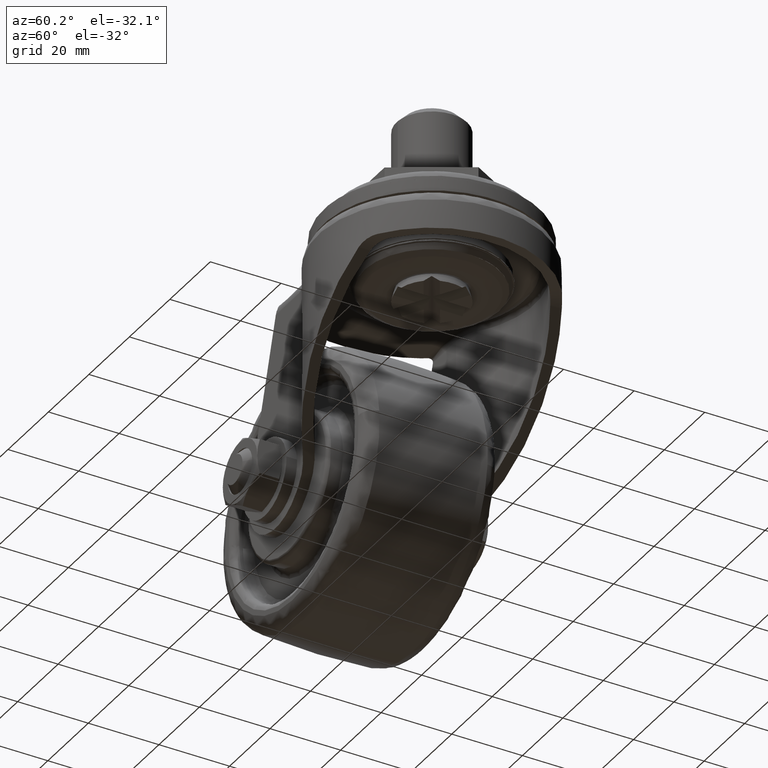
[diagram: clean part render]
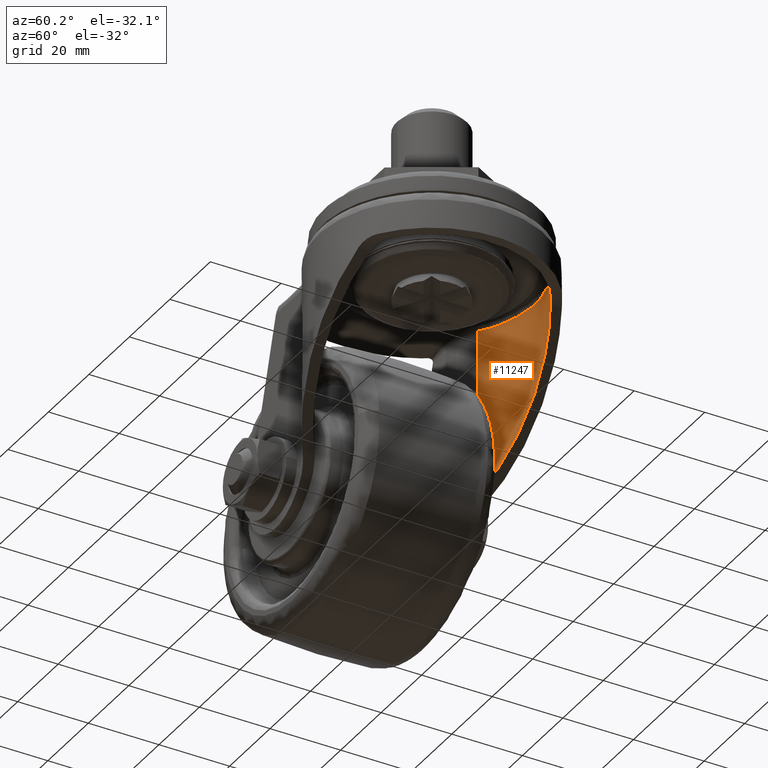
[diagram: same view with one face highlighted and labeled with its STEP entity id]
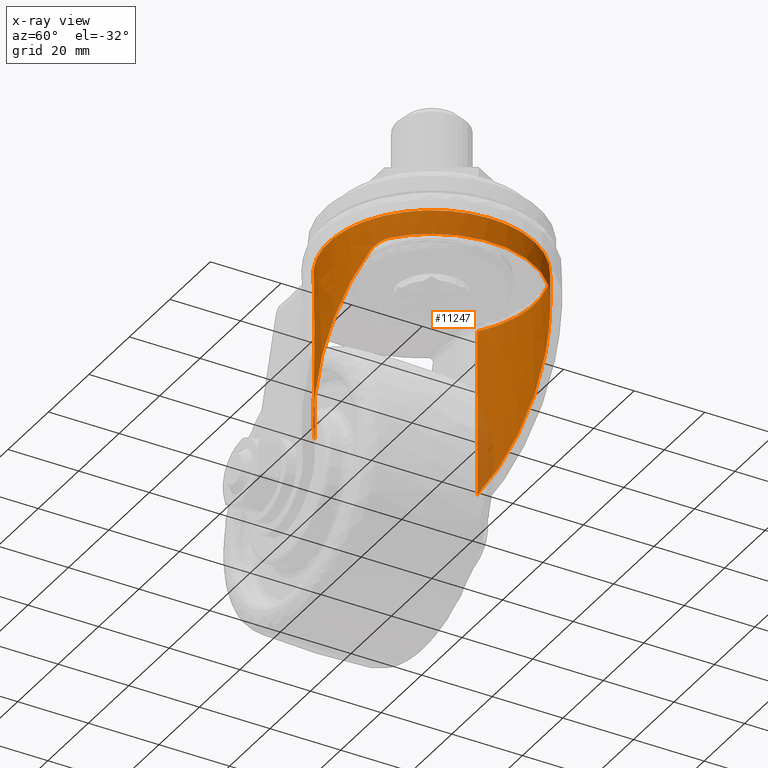
[diagram: x-ray of the same camera — body ghosted, the highlighted face saturated]
A machine part, auxiliary view. The second image highlights one B-rep face of the part: STEP entity #11247.
The next image is the same camera in x-ray: the body ghosted, the highlighted face saturated — about 6% of this face is hidden behind the body in this view.
In plain terms, the highlighted face is a freeform B-spline surface patch.
Its self-contained STEP definition (entity closure, byte-faithful):
#9712=CARTESIAN_POINT('',(-17.747272661947250,-23.061750000000000,-61.614574311255502));
#9713=VERTEX_POINT('',#9712);
#9727=CARTESIAN_POINT('',(14.049915000000100,-25.483521901275200,-23.175619000000001));
#9728=VERTEX_POINT('',#9727);
#9729=CARTESIAN_POINT('',(14.049915000000111,-25.483521901275189,-23.175619000000001));
#9730=CARTESIAN_POINT('',(-2.641809990851314,-34.686226230503124,-43.353896331077920));
#9731=CARTESIAN_POINT('',(-17.747272661947239,-23.061750000000000,-61.614574311255382));
#9739=(BOUNDED_CURVE()B_SPLINE_CURVE(2,(#9729,#9730,#9731),.UNSPECIFIED.,.F.,.U.)CURVE()GEOMETRIC_REPRESENTATION_ITEM()QUASI_UNIFORM_CURVE()RATIONAL_B_SPLINE_CURVE((1.0,0.836526965356092,1.0))REPRESENTATION_ITEM(''));
#9740=EDGE_CURVE('',#9728,#9713,#9739,.T.);
#9797=CARTESIAN_POINT('',(18.673130000000000,-22.318696556992300,-21.0));
#9798=VERTEX_POINT('',#9797);
#9799=CARTESIAN_POINT('',(14.049915000000100,-25.483521901275200,-23.175619000000001));
#9800=CARTESIAN_POINT('',(14.206374331957621,-25.397260656715829,-22.986478553377140));
#9801=CARTESIAN_POINT('',(14.370914587113070,-25.304664374461311,-22.811099598976419));
#9802=CARTESIAN_POINT('',(14.714012455334229,-25.106713497359632,-22.485431106285208));
#9803=CARTESIAN_POINT('',(14.892580312822741,-25.001355305046850,-22.335155960841739));
#9804=CARTESIAN_POINT('',(15.169875597722850,-24.833375791772252,-22.127573494176911));
#9805=CARTESIAN_POINT('',(15.263885769311591,-24.775722777974799,-22.061358205443049));
#9806=CARTESIAN_POINT('',(15.407168186932990,-24.686683261365278,-21.966435091762019));
#9807=CARTESIAN_POINT('',(15.455307069495509,-24.656576593308429,-21.935527721477019));
#9808=CARTESIAN_POINT('',(15.552326701531291,-24.595495930818721,-21.875173110799249));
#9809=CARTESIAN_POINT('',(15.601274055266471,-24.564479082429830,-21.845688688099319));
#9810=CARTESIAN_POINT('',(15.846515354739310,-24.408033655553009,-21.702657801301950));
#9811=CARTESIAN_POINT('',(16.044947019778238,-24.278135519269700,-21.601800939700709));
#9812=CARTESIAN_POINT('',(16.445221381180151,-24.008808443641900,-21.424668435121379));
#9813=CARTESIAN_POINT('',(16.647067728470979,-23.869378480678041,-21.348403547979391));
#9814=CARTESIAN_POINT('',(16.951806337419701,-23.652944534479349,-21.251225126621129));
#9815=CARTESIAN_POINT('',(17.053715840929790,-23.579584069722650,-21.221708215347910));
#9816=CARTESIAN_POINT('',(17.258114300970998,-23.430396916375919,-21.168285951911209));
#9817=CARTESIAN_POINT('',(17.360753551523171,-23.354454702813928,-21.144357197646499));
#9818=CARTESIAN_POINT('',(17.871678244318311,-22.971160401941919,-21.039141989306390));
#9819=CARTESIAN_POINT('',(18.275340204610089,-22.651510820720521,-21.0));
#9820=CARTESIAN_POINT('',(18.673130000000000,-22.318696556992300,-21.0));
#9821=B_SPLINE_CURVE_WITH_KNOTS('',3,(#9799,#9800,#9801,#9802,#9803,#9804,#9805,#9806,#9807,#9808,#9809,#9810,#9811,#9812,#9813,#9814,#9815,#9816,#9817,#9818,#9819,#9820),.UNSPECIFIED.,.F.,.U.,(4,2,2,2,2,2,2,2,2,2,4),(0.0,0.125000000000000,0.250000000000001,0.312500000000001,0.343750000000001,0.375000000000002,0.500000000000003,0.625000000000002,0.687500000000002,0.750000000000002,1.0),.UNSPECIFIED.);
#9822=EDGE_CURVE('',#9728,#9798,#9821,.T.);
#10374=CARTESIAN_POINT('',(-17.747272661947250,-23.061750000000000,-14.150000000000000));
#10375=VERTEX_POINT('',#10374);
#10436=CARTESIAN_POINT('',(-17.747272661947250,23.061750000000000,-14.150000000000000));
#10437=VERTEX_POINT('',#10436);
#10451=CARTESIAN_POINT('',(-17.747272661947250,-23.061750000000000,-14.150000000000000));
#10452=CARTESIAN_POINT('',(-17.680074139462519,-23.112760851449380,-14.150000000000009));
#10453=CARTESIAN_POINT('',(-17.579838648665920,-23.189972870901229,-14.150000000000000));
#10454=CARTESIAN_POINT('',(-17.209011084386720,-23.468887657620868,-14.149999999999970));
#10455=CARTESIAN_POINT('',(-16.867032311992560,-23.715962313793302,-14.150000000000031));
#10456=CARTESIAN_POINT('',(-16.520056581892941,-23.955907200820398,-14.150000000000000));
#10457=CARTESIAN_POINT('',(-16.381184691566329,-24.051768616017458,-14.150000000000000));
#10458=CARTESIAN_POINT('',(-15.787176593488010,-24.453623832538661,-14.149999999999990));
#10459=CARTESIAN_POINT('',(-15.143599415620450,-24.857307343640041,-14.149999999999981));
#10460=CARTESIAN_POINT('',(-14.523252325653109,-25.217175079235680,-14.150000000000160));
#10461=CARTESIAN_POINT('',(-14.376419486402719,-25.300331414923480,-14.150000000000020));
#10462=CARTESIAN_POINT('',(-14.266520771805171,-25.363068569538871,-14.149999999999860));
#10463=CARTESIAN_POINT('',(-12.683579491481510,-26.249004115764780,-14.150000000000240));
#10464=CARTESIAN_POINT('',(-11.019849081101700,-26.989734546059591,-14.149999999999860));
#10465=CARTESIAN_POINT('',(-9.302282171332022,-27.573292883088470,-14.149999999999981));
#10466=CARTESIAN_POINT('',(-9.182124529410260,-27.612982192116089,-14.150000000000000));
#10467=CARTESIAN_POINT('',(-9.022063812476700,-27.666392795134350,-14.149999999999970));
#10468=CARTESIAN_POINT('',(-6.974722376874067,-28.327835000051540,-14.150000000000089));
#10469=CARTESIAN_POINT('',(-3.900705291801518,-28.961856056703930,-14.149999999999700));
#10470=CARTESIAN_POINT('',(0.909715297280482,-29.188394508859709,-14.150000000000100));
#10471=CARTESIAN_POINT('',(5.126169953417723,-28.780331202872130,-14.150000000000171));
#10472=CARTESIAN_POINT('',(9.825099605380402,-27.521411780605749,-14.149999999999570));
#10473=CARTESIAN_POINT('',(12.685232630043020,-26.242734545424529,-14.150000000000210));
#10474=CARTESIAN_POINT('',(14.196837578618110,-25.402135104715452,-14.149999999999901));
#10475=CARTESIAN_POINT('',(14.306909305614370,-25.339703031096040,-14.150000000000020));
#10476=CARTESIAN_POINT('',(14.453986159619090,-25.256974281428739,-14.149999999999990));
#10477=CARTESIAN_POINT('',(14.782865957357590,-25.067243452810992,-14.150000000000000));
#10478=CARTESIAN_POINT('',(15.144730503582290,-24.850320342219309,-14.150000000000009));
#10479=CARTESIAN_POINT('',(15.467015152528569,-24.649595755459480,-14.150000000000000));
#10480=CARTESIAN_POINT('',(15.609311432999171,-24.558893852856549,-14.150000000000000));
#10481=CARTESIAN_POINT('',(15.716244606538710,-24.491230572633970,-14.150000000000000));
#10482=CARTESIAN_POINT('',(15.928885811671060,-24.353961101322788,-14.149999999999990));
#10483=CARTESIAN_POINT('',(16.140204255300219,-24.214641289124891,-14.150000000000000));
#10484=CARTESIAN_POINT('',(16.349603904753341,-24.072443059084609,-14.150000000000000));
#10485=CARTESIAN_POINT('',(16.454526108769858,-24.001661400942389,-14.150000000000000));
#10486=CARTESIAN_POINT('',(16.558290660604442,-23.929193762698262,-14.150000000000000));
#10487=CARTESIAN_POINT('',(16.662679601749140,-23.857629086192901,-14.150000000000000));
#10488=CARTESIAN_POINT('',(16.765807575079329,-23.784259510031941,-14.150000000000000));
#10489=CARTESIAN_POINT('',(16.869567437483539,-23.711787645514448,-14.150000000000000));
#10490=CARTESIAN_POINT('',(16.972063624242860,-23.637539013021591,-14.150000000000000));
#10491=CARTESIAN_POINT('',(17.040798869223249,-23.588606152427449,-14.150000000000000));
#10492=CARTESIAN_POINT('',(17.689837406167211,-23.118317579681101,-14.149999999999990));
#10493=CARTESIAN_POINT('',(18.287259195586898,-22.648687662879642,-14.150000000000000));
#10494=CARTESIAN_POINT('',(18.897513398425431,-22.129056852521320,-14.150000000000000));
#10495=CARTESIAN_POINT('',(18.961296517509989,-22.073817658559388,-14.149999999999990));
#10496=CARTESIAN_POINT('',(19.057650403065491,-21.991747757844848,-14.150000000000000));
#10497=CARTESIAN_POINT('',(19.152693075550349,-21.908165020301102,-14.149999999999990));
#10498=CARTESIAN_POINT('',(19.374900207162408,-21.713693371322620,-14.150000000000020));
#10499=CARTESIAN_POINT('',(19.594212221325581,-21.515925674050170,-14.149999999999981));
#10500=CARTESIAN_POINT('',(19.810659106081751,-21.315059125332191,-14.150000000000000));
#10501=CARTESIAN_POINT('',(19.903617306960140,-21.229159170916880,-14.150000000000000));
#10502=CARTESIAN_POINT('',(19.995196846676841,-21.141792863261980,-14.149999999999990));
#10503=CARTESIAN_POINT('',(20.087526779618869,-21.055223760504020,-14.150000000000000));
#10504=CARTESIAN_POINT('',(20.178351103935899,-20.967077537174291,-14.150000000000000));
#10505=CARTESIAN_POINT('',(20.239380256726090,-20.908815132463669,-14.150000000000000));
#10506=CARTESIAN_POINT('',(20.572331372513840,-20.585610742930889,-14.150000000000009));
#10507=CARTESIAN_POINT('',(20.898279330855921,-20.255176157900660,-14.150000000000000));
#10508=CARTESIAN_POINT('',(21.244762383761650,-19.886116771801390,-14.150000000000000));
#10509=CARTESIAN_POINT('',(21.331348839717709,-19.793805478114550,-14.150000000000000));
#10510=CARTESIAN_POINT('',(21.531604342302838,-19.576837639565760,-14.149999999999990));
#10511=CARTESIAN_POINT('',(21.729245776869181,-19.357465039548870,-14.150000000000009));
#10512=CARTESIAN_POINT('',(21.923516286084659,-19.135120663339830,-14.150000000000000));
#10513=CARTESIAN_POINT('',(22.007021742884170,-19.040010565169140,-14.150000000000000));
#10514=CARTESIAN_POINT('',(22.089132589963562,-18.943692137652420,-14.150000000000000));
#10515=CARTESIAN_POINT('',(22.281260769540310,-18.719449061359480,-14.150000000000009));
#10516=CARTESIAN_POINT('',(22.442983574848771,-18.524726702524379,-14.149999999999981));
#10517=CARTESIAN_POINT('',(22.602693412837571,-18.328376528739490,-14.150000000000000));
#10518=CARTESIAN_POINT('',(22.655380283952969,-18.262473485501889,-14.150000000000000));
#10519=CARTESIAN_POINT('',(22.735222073118369,-18.164269456069679,-14.150000000000000));
#10520=CARTESIAN_POINT('',(22.813514966274791,-18.064825791092929,-14.150000000000000));
#10521=CARTESIAN_POINT('',(23.022808289488971,-17.800059323965272,-14.149999999999970));
#10522=CARTESIAN_POINT('',(23.227604374308800,-17.531785291398961,-14.150000000000020));
#10523=CARTESIAN_POINT('',(23.428453829000020,-17.260582931772699,-14.150000000000000));
#10524=CARTESIAN_POINT('',(23.502862349860290,-17.158228680768161,-14.150000000000000));
#10525=CARTESIAN_POINT('',(23.602577383297199,-17.022094675646031,-14.150000000000000));
#10526=CARTESIAN_POINT('',(23.700865444566318,-16.884914343047448,-14.150000000000009));
#10527=CARTESIAN_POINT('',(23.797797596317260,-16.746782914125699,-14.150000000000000));
#10528=CARTESIAN_POINT('',(23.870827746832550,-16.643430384984821,-14.150000000000000));
#10529=CARTESIAN_POINT('',(24.063150997871251,-16.366118308759411,-14.149999999999981));
#10530=CARTESIAN_POINT('',(24.251425514867311,-16.086008947173219,-14.150000000000009));
#10531=CARTESIAN_POINT('',(24.434981140013591,-15.802805638453210,-14.150000000000000));
#10532=CARTESIAN_POINT('',(24.526753427285779,-15.661196271860470,-14.150000000000000));
#10533=CARTESIAN_POINT('',(24.684618256315019,-15.411621226654720,-14.150000000000009));
#10534=CARTESIAN_POINT('',(24.839941469795050,-15.160449738036361,-14.150000000000000));
#10535=CARTESIAN_POINT('',(24.969841561237001,-14.943196573925089,-14.150000000000000));
#10536=CARTESIAN_POINT('',(25.035006677241459,-14.834717782156339,-14.149999999999990));
#10537=CARTESIAN_POINT('',(25.249169472319050,-14.471278782915521,-14.150000000000000));
#10538=CARTESIAN_POINT('',(25.456385890458979,-14.103762167200861,-14.150000000000000));
#10539=CARTESIAN_POINT('',(25.655943629502659,-13.732090524226731,-14.150000000000000));
#10540=CARTESIAN_POINT('',(25.735637214090492,-13.583350898720170,-14.150000000000000));
#10541=CARTESIAN_POINT('',(26.146757204667178,-12.798602486720680,-14.150000000000000));
#10542=CARTESIAN_POINT('',(26.541738955304648,-11.957966123090440,-14.150000000000000));
#10543=CARTESIAN_POINT('',(26.883410415580531,-11.140586644158629,-14.150000000000009));
#10544=CARTESIAN_POINT('',(26.946887418736519,-10.984237012916321,-14.150000000000000));
#10545=CARTESIAN_POINT('',(26.994891836646900,-10.867151228059001,-14.150000000000000));
#10546=CARTESIAN_POINT('',(27.543298302292389,-9.496274995990012,-14.150000000000000));
#10547=CARTESIAN_POINT('',(28.385721987219689,-6.835013463835888,-14.150000000000000));
#10548=CARTESIAN_POINT('',(29.074529319485379,-2.705560690867753,-14.150000000000000));
#10549=CARTESIAN_POINT('',(29.159092638609899,1.185206787909403,-14.150000000000000));
#10550=CARTESIAN_POINT('',(28.792247004142069,4.545478794503606,-14.150000000000020));
#10551=CARTESIAN_POINT('',(28.074690021661670,7.932812168347671,-14.150000000000000));
#10552=CARTESIAN_POINT('',(27.278341659083999,10.254281291417360,-14.150000000000000));
#10553=CARTESIAN_POINT('',(26.617762074870960,11.761119982304971,-14.150000000000000));
#10554=CARTESIAN_POINT('',(26.548482930795100,11.914984481808530,-14.150000000000000));
#10555=CARTESIAN_POINT('',(26.496914826526709,12.030542534424320,-14.150000000000000));
#10556=CARTESIAN_POINT('',(26.391660509080111,12.260718201149590,-14.150000000000009));
#10557=CARTESIAN_POINT('',(26.284167183636839,12.489869823032789,-14.149999999999981));
#10558=CARTESIAN_POINT('',(26.173646524539159,12.717583271028230,-14.150000000000000));
#10559=CARTESIAN_POINT('',(26.063111853988310,12.945298093723901,-14.150000000000000));
#10560=CARTESIAN_POINT('',(25.930054973126751,13.208946595352980,-14.149999999999990));
#10561=CARTESIAN_POINT('',(25.794559911645671,13.471336768563701,-14.150000000000000));
#10562=CARTESIAN_POINT('',(25.715260796111199,13.620291017936889,-14.150000000000000));
#10563=CARTESIAN_POINT('',(25.656447625142569,13.732357490266210,-14.150000000000009));
#10564=CARTESIAN_POINT('',(25.595774864254139,13.843428184617650,-14.149999999999990));
#10565=CARTESIAN_POINT('',(25.555918251946171,13.917790413626699,-14.150000000000000));
#10566=CARTESIAN_POINT('',(24.585057928922140,15.694772612496759,-14.150000000000020));
#10567=CARTESIAN_POINT('',(23.455879711604322,17.337095469642350,-14.150000000000009));
#10568=CARTESIAN_POINT('',(22.144188152652060,18.879731188145090,-14.149999999999990));
#10569=CARTESIAN_POINT('',(22.089023788400450,18.943579849324720,-14.150000000000000));
#10570=CARTESIAN_POINT('',(22.007028389818249,19.040002918141759,-14.150000000000000));
#10571=CARTESIAN_POINT('',(21.923503493029340,19.135101109996210,-14.150000000000000));
#10572=CARTESIAN_POINT('',(21.757044015784171,19.325787782461539,-14.149999999999990));
#10573=CARTESIAN_POINT('',(21.588017407233998,19.514156597815472,-14.150000000000000));
#10574=CARTESIAN_POINT('',(21.417197092692891,19.700875936389831,-14.150000000000000));
#10575=CARTESIAN_POINT('',(21.330988190314081,19.793461458878092,-14.150000000000000));
#10576=CARTESIAN_POINT('',(21.187572613290531,19.948149994314829,-14.150000000000000));
#10577=CARTESIAN_POINT('',(21.042274400138350,20.101050513059480,-14.150000000000000));
#10578=CARTESIAN_POINT('',(20.895930982774509,20.252952266352619,-14.150000000000000));
#10579=CARTESIAN_POINT('',(20.807216183691839,20.343181473816720,-14.150000000000000));
#10580=CARTESIAN_POINT('',(20.719100679407529,20.434037174489980,-14.150000000000000));
#10581=CARTESIAN_POINT('',(20.629579320105531,20.523509786273010,-14.150000000000000));
#10582=CARTESIAN_POINT('',(20.421156066704111,20.732693654361530,-14.150000000000000));
#10583=CARTESIAN_POINT('',(20.209749227482089,20.938894019224570,-14.150000000000009));
#10584=CARTESIAN_POINT('',(19.995319573849351,21.141913502315930,-14.150000000000000));
#10585=CARTESIAN_POINT('',(19.903621652027130,21.229151022291880,-14.150000000000000));
#10586=CARTESIAN_POINT('',(19.810646777754020,21.315027974115370,-14.149999999999990));
#10587=CARTESIAN_POINT('',(19.625220715460980,21.487339639383659,-14.150000000000031));
#10588=CARTESIAN_POINT('',(19.437458326984508,21.657084653115611,-14.149999999999970));
#10589=CARTESIAN_POINT('',(19.248102565144681,21.825031145947200,-14.150000000000000));
#10590=CARTESIAN_POINT('',(19.152646443512200,21.908099452926511,-14.150000000000000));
#10591=CARTESIAN_POINT('',(19.025788571857941,22.019377327407192,-14.150000000000000));
#10592=CARTESIAN_POINT('',(18.897749115670958,22.129309800434289,-14.150000000000000));
#10593=CARTESIAN_POINT('',(18.768646865505989,22.237979528441119,-14.150000000000000));
#10594=CARTESIAN_POINT('',(18.672101567753991,22.319797275428002,-14.150000000000000));
#10595=CARTESIAN_POINT('',(18.477532303714032,22.481675287617250,-14.149999999999810));
#10596=CARTESIAN_POINT('',(18.281394244413821,22.641662528796530,-14.150000000001420));
#10597=CARTESIAN_POINT('',(18.083133119450370,22.799014075967708,-14.149999999994989));
#10598=CARTESIAN_POINT('',(17.951058676272218,22.904047682321579,-14.150000000034529));
#10599=CARTESIAN_POINT('',(17.784434125742170,23.033396063423918,-14.149999999926591));
#10600=CARTESIAN_POINT('',(17.617134237362279,23.161871738998229,-14.150000000121880));
#10601=CARTESIAN_POINT('',(17.482042556202408,23.263001173304449,-14.149999999975460));
#10602=CARTESIAN_POINT('',(17.381032044534660,23.339235580008459,-14.149999999987310));
#10603=CARTESIAN_POINT('',(17.109864021391409,23.540127931487760,-14.150000000001359));
#10604=CARTESIAN_POINT('',(16.835772126214049,23.737060467122831,-14.149999999999810));
#10605=CARTESIAN_POINT('',(16.558444903312751,23.929378292120631,-14.150000000000031));
#10606=CARTESIAN_POINT('',(16.419746330254789,24.025492446912100,-14.150000000000000));
#10607=CARTESIAN_POINT('',(16.175340985259030,24.191244357799050,-14.150000000000000));
#10608=CARTESIAN_POINT('',(15.893681192948289,24.377193715325209,-14.150000000000009));
#10609=CARTESIAN_POINT('',(15.645273249738390,24.536891230481551,-14.149999999999990));
#10610=CARTESIAN_POINT('',(15.502392346732661,24.626673204753370,-14.150000000000000));
#10611=CARTESIAN_POINT('',(15.180860465361111,24.828561871800851,-14.150000000000000));
#10612=CARTESIAN_POINT('',(14.891718791530289,25.002666531487311,-14.150000000000000));
#10613=CARTESIAN_POINT('',(14.600038513619650,25.172399358310010,-14.150000000000000));
#10614=CARTESIAN_POINT('',(14.526796501451560,25.214283682371761,-14.150000000000000));
#10615=CARTESIAN_POINT('',(14.380689812368511,25.298701642160331,-14.150000000000000));
#10616=CARTESIAN_POINT('',(12.801093032042170,26.190651498246581,-14.150000000000000));
#10617=CARTESIAN_POINT('',(10.329366578188070,27.302038980973329,-14.150000000000000));
#10618=CARTESIAN_POINT('',(7.008640756716956,28.285118192436052,-14.150000000000000));
#10619=CARTESIAN_POINT('',(4.109755269760147,28.862255643738290,-14.150000000000000));
#10620=CARTESIAN_POINT('',(1.332182922153787,29.118873796039541,-14.150000000000000));
#10621=CARTESIAN_POINT('',(-1.876279007093746,29.093548035719909,-14.149999999999990));
#10622=CARTESIAN_POINT('',(-4.900943260861189,28.752538954799270,-14.150000000000000));
#10623=CARTESIAN_POINT('',(-7.204426527245483,28.213892380380209,-14.150000000000000));
#10624=CARTESIAN_POINT('',(-8.297152381419819,27.892424562031319,-14.150000000000000));
#10625=CARTESIAN_POINT('',(-8.458545280989814,27.843164571107469,-14.150000000000000));
#10626=CARTESIAN_POINT('',(-8.579702688307094,27.806638614678260,-14.150000000000000));
#10627=CARTESIAN_POINT('',(-8.821350717262000,27.731367198443291,-14.150000000000009));
#10628=CARTESIAN_POINT('',(-9.062266150764305,27.653745217537342,-14.150000000000000));
#10629=CARTESIAN_POINT('',(-9.302125681250537,27.572904461639141,-14.150000000000000));
#10630=CARTESIAN_POINT('',(-9.462069908215026,27.519113775047071,-14.150000000000000));
#10631=CARTESIAN_POINT('',(-9.820697572063267,27.394426998532339,-14.150000000000020));
#10632=CARTESIAN_POINT('',(-10.216797741448209,27.249151208512220,-14.149999999999981));
#10633=CARTESIAN_POINT('',(-10.571025781495660,27.112470600631429,-14.150000000000000));
#10634=CARTESIAN_POINT('',(-10.727784182687531,27.050006465461468,-14.150000000000000));
#10635=CARTESIAN_POINT('',(-10.845494833347610,27.003565414109069,-14.149999999999890));
#10636=CARTESIAN_POINT('',(-13.348815085284009,25.992198381764840,-14.150000000012330));
#10637=CARTESIAN_POINT('',(-15.674841780458250,24.657438958939530,-14.149999999973060));
#10638=CARTESIAN_POINT('',(-17.747272661947250,23.061750000000000,-14.150000000000000));
#10639=B_SPLINE_CURVE_WITH_KNOTS('',3,(#10451,#10452,#10453,#10454,#10455,#10456,#10457,#10458,#10459,#10460,#10461,#10462,#10463,#10464,#10465,#10466,#10467,#10468,#10469,#10470,#10471,#10472,#10473,#10474,#10475,#10476,#10477,#10478,#10479,#10480,#10481,#10482,#10483,#10484,#10485,#10486,#10487,#10488,#10489,#10490,#10491,#10492,#10493,#10494,#10495,#10496,#10497,#10498,#10499,#10500,#10501,#10502,#10503,#10504,#10505,#10506,#10507,#10508,#10509,#10510,#10511,#10512,#10513,#10514,#10515,#10516,#10517,#10518,#10519,#10520,#10521,#10522,#10523,#10524,#10525,#10526,#10527,#10528,#10529,#10530,#10531,#10532,#10533,#10534,#10535,#10536,#10537,#10538,#10539,#10540,#10541,#10542,#10543,#10544,#10545,#10546,#10547,#10548,#10549,#10550,#10551,#10552,#10553,#10554,#10555,#10556,#10557,#10558,#10559,#10560,#10561,#10562,#10563,#10564,#10565,#10566,#10567,#10568,#10569,#10570,#10571,#10572,#10573,#10574,#10575,#10576,#10577,#10578,#10579,#10580,#10581,#10582,#10583,#10584,#10585,#10586,#10587,#10588,#10589,#10590,#10591,#10592,#10593,#10594,#10595,#10596,#10597,#10598,#10599,#10600,#10601,#10602,#10603,#10604,#10605,#10606,#10607,#10608,#10609,#10610,#10611,#10612,#10613,#10614,#10615,#10616,#10617,#10618,#10619,#10620,#10621,#10622,#10623,#10624,#10625,#10626,#10627,#10628,#10629,#10630,#10631,#10632,#10633,#10634,#10635,#10636,#10637,#10638),.UNSPECIFIED.,.F.,.U.,(4,1,1,1,1,1,1,1,1,1,1,1,1,1,1,1,1,1,1,1,1,1,1,1,1,1,1,1,1,1,1,1,1,1,1,1,1,1,1,2,2,1,1,1,1,1,1,1,1,1,1,2,1,1,1,1,1,1,1,1,1,2,1,1,1,1,1,1,1,1,1,1,1,1,1,1,1,1,1,1,1,1,1,1,1,1,1,1,1,1,1,1,1,1,1,1,1,1,1,1,1,1,1,1,1,1,1,1,1,2,2,1,1,1,1,1,1,1,1,1,1,1,1,1,1,1,1,1,1,1,1,1,1,1,1,1,1,1,1,1,1,1,1,1,1,1,1,1,1,1,1,1,1,1,2,1,1,1,1,1,1,1,1,1,1,1,1,1,1,1,1,1,1,1,1,1,1,1,4),(0.000463274589322,0.253564721583757,0.380032442391240,1.392496099356265,1.519053848179766,1.645611597003224,1.898728647227088,3.670545385172062,3.923661585543243,4.050220354808701,4.176779124074457,4.303298345682677,9.492172486349119,9.618688905274766,9.745245618773581,9.871802332272438,10.124915709977881,16.199638440776170,19.236999956320759,24.552383070856319,28.855311009557820,33.791021299592018,33.917538006661736,34.044098204346810,34.170658402031890,34.423778504613537,35.183135478391520,35.436252746810780,35.562810774294427,35.689368801778059,35.815878952067223,36.322107177605012,36.448669991847140,36.575232806089303,36.701794900149402,36.828356994209557,36.954918207620281,37.081479421030863,37.208039580098273,37.334599739165427,39.612581140505803,39.739147477214743,39.865713813923620,39.992277518280787,40.118841222637798,40.751582066648609,40.878150920163719,41.004719773678843,41.131284956809623,41.257850139940523,41.384411198875803,41.510972257811133,42.776485400925203,42.903057085748792,43.029628770572216,43.156176757393737,43.788829643303302,43.915392614323650,44.041955585343963,44.168522458414927,44.295089331486082,44.927837562378741,45.054398949414363,45.180960336450077,45.307524493237608,45.434088650025132,46.193455951785637,46.319960395734142,46.446520707739872,46.573081019745487,46.826205083031823,46.952768573947083,47.079332064862442,47.205855436823910,47.965194878403068,48.091753619179862,48.218312359956983,48.471431680309202,48.977674537402017,49.104236015001689,49.230797492601340,49.357316422314497,50.369770897068527,50.496328529460300,50.622886161852151,50.876001969208019,53.154049628273867,53.407165258654082,53.533722919367982,53.660280580081832,53.786798027233601,57.963205898235167,62.013000146599751,66.315915344588802,69.606382672565005,72.137503472006586,76.693563890886693,76.946678984124901,77.073236240300304,77.199793496475422,77.326303266772470,77.832533427768283,77.959094379333180,78.085655330898248,78.591897484773909,78.845017341638339,78.971576715743623,79.098136089848722,79.224694785870653,79.351253481892343,85.299357426169138,85.425929032272023,85.552500638375122,85.679067001791225,85.805633365207342,86.311863843300983,86.438292856680079,86.564838235359204,86.691383614038330,87.071117244514909,87.197602501240311,87.324164826845674,87.450727152451094,87.577294033169380,87.703860913887581,88.336613337879442,88.463175690194248,88.589738042509083,88.716303662551070,88.842869282593142,89.349125130622809,89.475620025920364,89.602180261363685,89.728740496806950,89.981865683467049,90.108430325071026,90.234994966674989,90.361515539215503,90.867741410268081,90.994300326174567,91.120859242081110,91.373980090351523,91.627103511771580,91.753666303314048,91.880229094856745,92.006751049491982,92.766091630439263,92.892650016843945,93.019208403248456,93.272326602356159,93.778566256991212,94.031687256591482,94.158248012516466,94.284808768441593,95.170666605377136,95.297223844706991,95.423781084036619,95.676896041774285,100.739192288397110,103.523426785476500,106.054547672946200,109.598124439989410,111.876137258544200,115.672826608043590,118.710208532382790,118.963323152201200,119.089880263227100,119.216437374252910,119.342951402624190,119.849178903495100,119.975739079442600,120.102299255389990,120.355419383993000,121.114776982547890,121.367894690460800,121.494453009265900,121.621011328071010,121.747530480427200,129.593997253995410),.UNSPECIFIED.);
#10640=EDGE_CURVE('',#10375,#10437,#10639,.T.);
#11045=CARTESIAN_POINT('',(-17.747272661947250,23.061750000000000,-61.614574311255502));
#11046=VERTEX_POINT('',#11045);
#11047=CARTESIAN_POINT('',(-17.747272661947250,23.061750000000000,-61.614574311255502));
#11048=CARTESIAN_POINT('',(-17.747272661947250,23.061750000000000,-14.150000000000000));
#11049=QUASI_UNIFORM_CURVE('',1,(#11047,#11048),.UNSPECIFIED.,.F.,.U.);
#11050=EDGE_CURVE('',#11046,#10437,#11049,.T.);
#11092=CARTESIAN_POINT('',(-17.747272661947250,-23.061750000000000,-14.150000000000000));
#11093=CARTESIAN_POINT('',(-17.747272661947250,-23.061750000000000,-61.614574311255502));
#11094=QUASI_UNIFORM_CURVE('',1,(#11092,#11093),.UNSPECIFIED.,.F.,.U.);
#11095=EDGE_CURVE('',#10375,#9713,#11094,.T.);
#11154=CARTESIAN_POINT('',(-18.542060261960241,22.427706107442958,-62.801188669036883));
#11155=CARTESIAN_POINT('',(-18.542060261960241,22.427706107442958,-12.933720283274081));
#11156=CARTESIAN_POINT('',(2.617389150483976,39.921237734613534,-62.801188669036883));
#11157=CARTESIAN_POINT('',(2.617389150483976,39.921237734613534,-12.933720283274077));
#11158=CARTESIAN_POINT('',(21.311637056791248,19.814745165144110,-62.801188669036883));
#11159=CARTESIAN_POINT('',(21.311637056791248,19.814745165144110,-12.933720283274081));
#11160=CARTESIAN_POINT('',(40.005884963098516,-0.291747404325319,-62.801188669036883));
#11161=CARTESIAN_POINT('',(40.005884963098516,-0.291747404325319,-12.933720283274077));
#11162=CARTESIAN_POINT('',(21.020383242898809,-20.123456172379001,-62.801188669036883));
#11163=CARTESIAN_POINT('',(21.020383242898809,-20.123456172379001,-12.933720283274081));
#11164=CARTESIAN_POINT('',(2.034881522699109,-39.955164940432674,-62.801188669036883));
#11165=CARTESIAN_POINT('',(2.034881522699109,-39.955164940432674,-12.933720283274077));
#11166=CARTESIAN_POINT('',(-18.867183882209279,-22.154894997604980,-62.801188669036883));
#11167=CARTESIAN_POINT('',(-18.867183882209279,-22.154894997604980,-12.933720283274081));
#11175=(BOUNDED_SURFACE()B_SPLINE_SURFACE(1,2,((#11154,#11156,#11158,#11160,#11162,#11164,#11166),(#11155,#11157,#11159,#11161,#11163,#11165,#11167)),.UNSPECIFIED.,.F.,.F.,.U.)B_SPLINE_SURFACE_WITH_KNOTS((2,2),(3,2,2,3),(0.0,49.867468385762812),(0.0,46.242761105917097,92.485522211834208,138.728283317751310),.UNSPECIFIED.)GEOMETRIC_REPRESENTATION_ITEM()RATIONAL_B_SPLINE_SURFACE(((1.0,0.727373641573049,1.0,0.727373641573049,1.0,0.727373641573049,1.0),(1.0,0.727373641573049,1.0,0.727373641573049,1.0,0.727373641573049,1.0)))REPRESENTATION_ITEM('')SURFACE());
#11176=ORIENTED_EDGE('',*,*,#11095,.F.);
#11177=ORIENTED_EDGE('',*,*,#10640,.T.);
#11178=ORIENTED_EDGE('',*,*,#11050,.F.);
#11179=CARTESIAN_POINT('',(14.049915000000100,25.483521901275200,-23.175619000000001));
#11180=VERTEX_POINT('',#11179);
#11181=CARTESIAN_POINT('',(-17.747272661947310,23.061749999999940,-61.614574311255467));
#11182=CARTESIAN_POINT('',(-2.641809990851391,34.686226230503138,-43.353896331078005));
#11183=CARTESIAN_POINT('',(14.049915000000080,25.483521901275200,-23.175619000000040));
#11191=(BOUNDED_CURVE()B_SPLINE_CURVE(2,(#11181,#11182,#11183),.UNSPECIFIED.,.F.,.U.)CURVE()GEOMETRIC_REPRESENTATION_ITEM()QUASI_UNIFORM_CURVE()RATIONAL_B_SPLINE_CURVE((1.0,0.836526965356102,1.0))REPRESENTATION_ITEM(''));
#11192=EDGE_CURVE('',#11046,#11180,#11191,.T.);
#11193=ORIENTED_EDGE('',*,*,#11192,.T.);
#11194=CARTESIAN_POINT('',(18.673130000000000,22.318696556992300,-21.0));
#11195=VERTEX_POINT('',#11194);
#11196=CARTESIAN_POINT('',(18.673130000000000,22.318696556992300,-21.0));
#11197=CARTESIAN_POINT('',(18.573687150693662,22.401896274678592,-20.999999999999989));
#11198=CARTESIAN_POINT('',(18.473762246187860,22.484367196960090,-21.002475872814209));
#11199=CARTESIAN_POINT('',(18.273580927236448,22.647359666684139,-21.012479336495819));
#11200=CARTESIAN_POINT('',(18.173228630505189,22.727961531649349,-21.020006602235821));
#11201=CARTESIAN_POINT('',(17.871433669981862,22.967101592112659,-21.050363653084400));
#11202=CARTESIAN_POINT('',(17.669250598377850,23.122975825627570,-21.080947595343741));
#11203=CARTESIAN_POINT('',(17.263210215425289,23.427675958124169,-21.164326823481879));
#11204=CARTESIAN_POINT('',(17.059351749794651,23.576502125997930,-21.217114009134360));
#11205=CARTESIAN_POINT('',(16.752597332498201,23.794457679684069,-21.314662109504340));
#11206=CARTESIAN_POINT('',(16.650113095419218,23.866272715581399,-21.350292767590251));
#11207=CARTESIAN_POINT('',(16.447026392172798,24.006677451907571,-21.427186353790269));
#11208=CARTESIAN_POINT('',(16.346163177010069,24.075454634461000,-21.468525201796989));
#11209=CARTESIAN_POINT('',(16.045767541991790,24.277594811885329,-21.601396600225879));
#11210=CARTESIAN_POINT('',(15.848419090264830,24.406772241468069,-21.701759108405341));
#11211=CARTESIAN_POINT('',(15.460582063694250,24.654275920402569,-21.927536690533831));
#11212=CARTESIAN_POINT('',(15.270088338148200,24.772603669539460,-22.052940721488149));
#11213=CARTESIAN_POINT('',(15.037135772736301,24.913801715188459,-22.226853607640638));
#11214=CARTESIAN_POINT('',(14.990804668027391,24.941705167911081,-22.262496874619291));
#11215=CARTESIAN_POINT('',(14.898688584176790,24.996838995154459,-22.335554940617531));
#11216=CARTESIAN_POINT('',(14.852858789494000,25.024095376868630,-22.373010783214589));
#11217=CARTESIAN_POINT('',(14.717092395673051,25.104347153875398,-22.487376394000091));
#11218=CARTESIAN_POINT('',(14.628615980751720,25.155984149185858,-22.566481045903480));
#11219=CARTESIAN_POINT('',(14.369490461009640,25.305483990560859,-22.812468198167959));
#11220=CARTESIAN_POINT('',(14.205121560342951,25.397951348477040,-22.987993907065960));
#11221=CARTESIAN_POINT('',(14.049915375901310,25.483521694028319,-23.175619456759051));
#11222=B_SPLINE_CURVE_WITH_KNOTS('',3,(#11196,#11197,#11198,#11199,#11200,#11201,#11202,#11203,#11204,#11205,#11206,#11207,#11208,#11209,#11210,#11211,#11212,#11213,#11214,#11215,#11216,#11217,#11218,#11219,#11220,#11221),.UNSPECIFIED.,.F.,.U.,(4,2,2,2,2,2,2,2,2,2,2,2,4),(0.0,0.062500000000000,0.125000000000000,0.250000000000000,0.374999999999999,0.437499999999999,0.499999999999999,0.624999999999999,0.749999999999999,0.781249999999999,0.812500000000000,0.875000000000000,1.0),.UNSPECIFIED.);
#11223=EDGE_CURVE('',#11195,#11180,#11222,.T.);
#11224=ORIENTED_EDGE('',*,*,#11223,.F.);
#11225=CARTESIAN_POINT('',(18.673130000000000,22.318696556992300,-21.0));
#11226=CARTESIAN_POINT('',(20.197439664956960,21.043738285016460,-21.000000000000011));
#11227=CARTESIAN_POINT('',(22.658096140919501,18.513886367206229,-20.999999999999979));
#11228=CARTESIAN_POINT('',(25.396514551105788,14.430102427962680,-21.000000000000011));
#11229=CARTESIAN_POINT('',(26.953774379384001,11.126098132862770,-21.0));
#11230=CARTESIAN_POINT('',(28.031486916893218,7.991849729413276,-20.999999999999851));
#11231=CARTESIAN_POINT('',(28.902159787084258,4.310564168370292,-21.000000000000480));
#11232=CARTESIAN_POINT('',(29.196803745237450,0.395615556302396,-20.999999999999119));
#11233=CARTESIAN_POINT('',(28.947270509687311,-3.442015135401613,-21.000000000000579));
#11234=CARTESIAN_POINT('',(28.339711714899920,-7.040467907890880,-20.999999999999648));
#11235=CARTESIAN_POINT('',(27.099817529193938,-10.901669158341941,-21.000000000000199));
#11236=CARTESIAN_POINT('',(25.092008794623819,-14.944399345820599,-20.999999999999439));
#11237=CARTESIAN_POINT('',(22.435329435703309,-18.763676650472640,-21.000000000000998));
#11238=CARTESIAN_POINT('',(20.044970075907131,-21.171183452300930,-21.000000000000551));
#11239=CARTESIAN_POINT('',(18.673130000000000,-22.318696556992300,-21.0));
#11240=B_SPLINE_CURVE_WITH_KNOTS('',3,(#11225,#11226,#11227,#11228,#11229,#11230,#11231,#11232,#11233,#11234,#11235,#11236,#11237,#11238,#11239),.UNSPECIFIED.,.F.,.U.,(4,1,1,1,1,1,1,1,1,1,1,1,4),(0.000000064085555,5.961607721988983,10.532219033723299,14.705377775333959,16.891327903465459,20.468310638105240,26.032435119102011,28.615848158856469,31.994100946305259,36.962157494337120,40.737867562255957,45.507176820447768,50.872648387306022),.UNSPECIFIED.);
#11241=EDGE_CURVE('',#11195,#9798,#11240,.T.);
#11242=ORIENTED_EDGE('',*,*,#11241,.T.);
#11243=ORIENTED_EDGE('',*,*,#9822,.F.);
#11244=ORIENTED_EDGE('',*,*,#9740,.T.);
#11245=EDGE_LOOP('',(#11176,#11177,#11178,#11193,#11224,#11242,#11243,#11244));
#11246=FACE_OUTER_BOUND('',#11245,.T.);
#11247=ADVANCED_FACE('',(#11246),#11175,.F.);